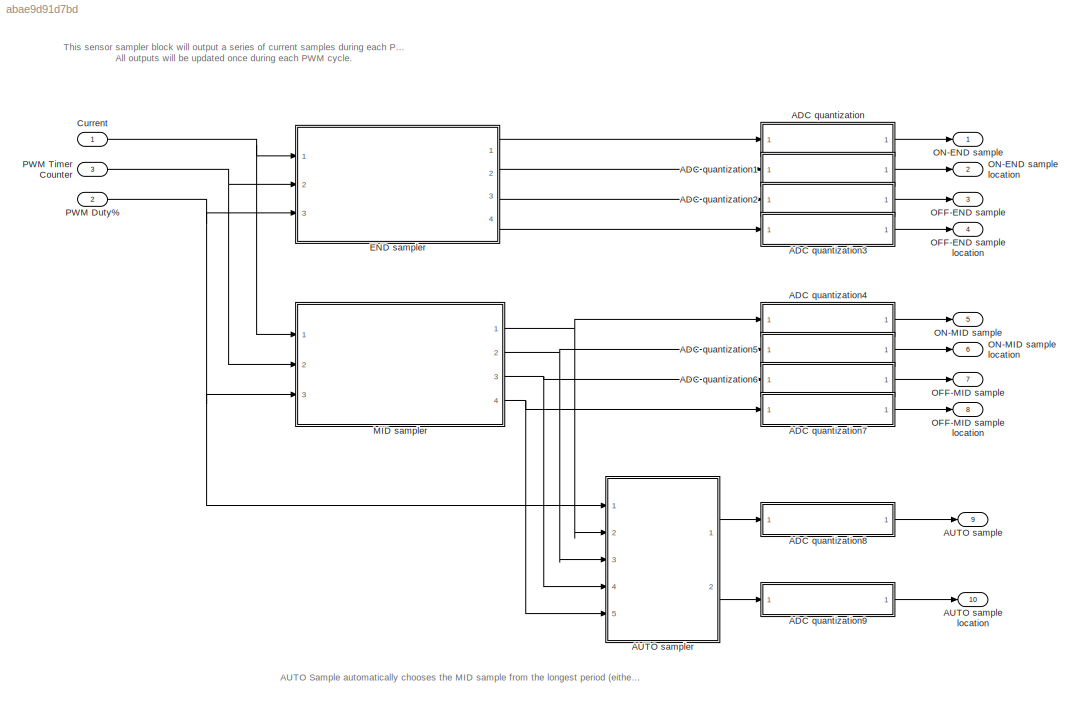
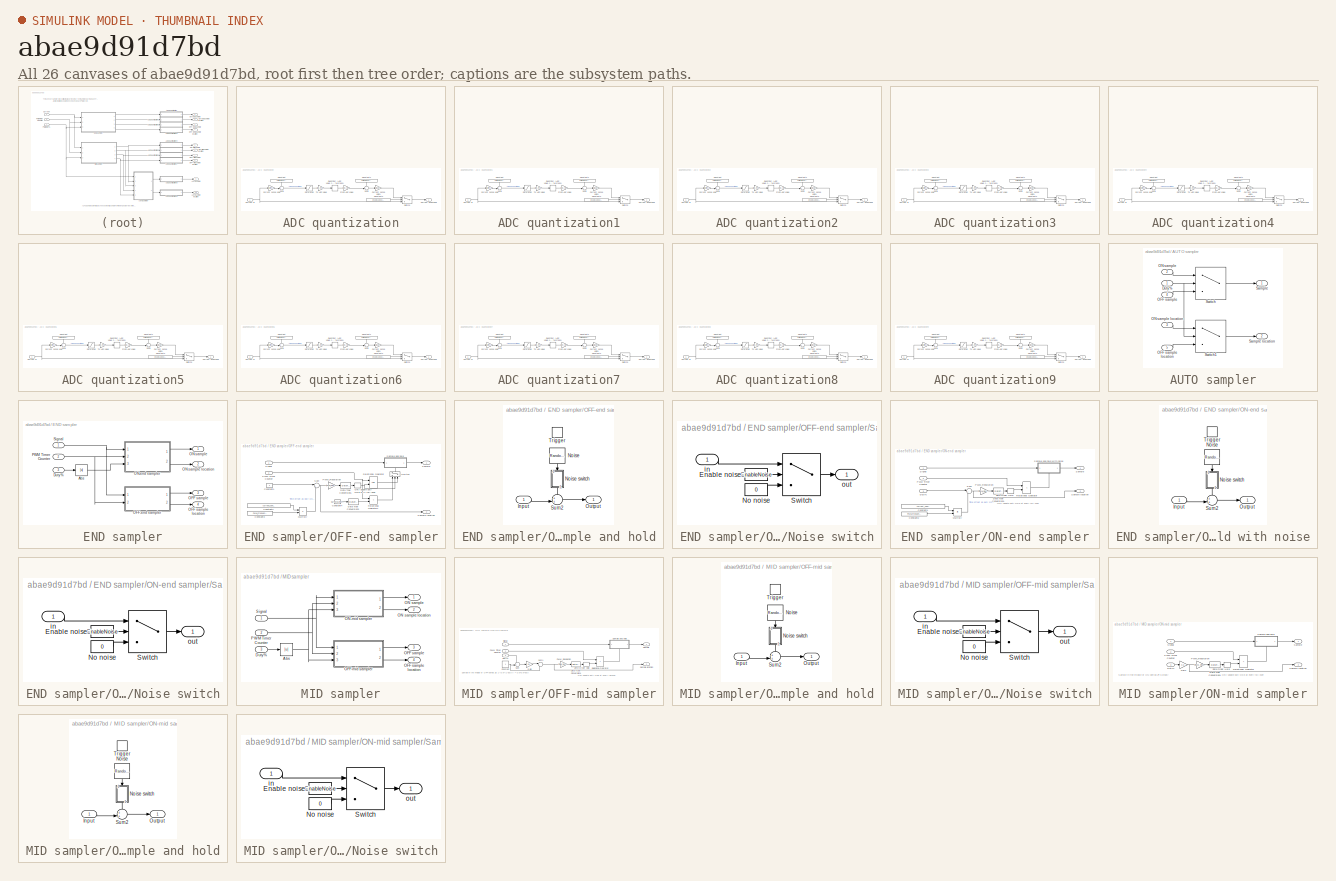
[diagram: thumbnail index - all 26 canvases of the model, root first then tree order]
MODEL slx_abae9d91d7bd
KIND model
CONFIG AbsTol = auto
CONFIG EnableMultiTasking = off
CONFIG FixedStep = auto
CONFIG InitFcn = Parameters_Model\nParameters_Simulation\nParameters_Estimators
CONFIG MaxStep = auto
CONFIG MinStep = auto
CONFIG PreLoadFcn = modelDir = fileparts(get_param(bdroot, 'FileName'));\naddpath(fullfile(modelDir,'Parameters'));\naddpath(fullfile(modelDir,'subsystems'));\n\nParameters_Model\nParameters_Simulation\nParameters_Estimators
CONFIG RelTol = 1e-3
CONFIG SampleTimeConstraint = Unconstrained
CONFIG Solver = VariableStepAuto
CONFIG SolverName = VariableStepAuto
CONFIG StartTime = 0.0
CONFIG StopTime = 10.0
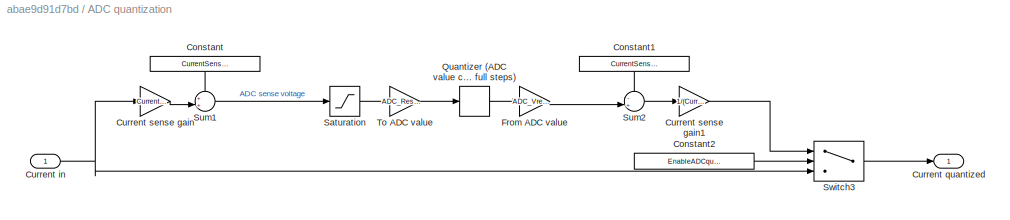
BLOCK [SubSystem] ADC quantization
  Ports = [1, 1]
  RequestExecContextInheritance = off
BLOCK [Constant] ADC quantization/Constant
  Value = CurrentSense_Voffset
BLOCK [Constant] ADC quantization/Constant1
  Value = CurrentSense_Voffset
BLOCK [Constant] ADC quantization/Constant2
  Value = EnableADCquantization
BLOCK [Inport] ADC quantization/Current in
  IconDisplay = Port number
BLOCK [Outport] ADC quantization/Current quantized
  IconDisplay = Port number
BLOCK [Gain] ADC quantization/Current sense gain
  Gain = CurrentSense_G*CurrentSense_Rsense
  OutDataTypeStr = Inherit: Inherit via internal rule
  ParamDataTypeStr = Inherit: Inherit via internal rule
  SaturateOnIntegerOverflow = off
BLOCK [Gain] ADC quantization/Current sense gain1
  Gain = 1/(CurrentSense_G*CurrentSense_Rsense)
  OutDataTypeStr = Inherit: Inherit via internal rule
  ParamDataTypeStr = Inherit: Inherit via internal rule
  SaturateOnIntegerOverflow = off
BLOCK [Gain] ADC quantization/From ADC value
  Gain = ADC_Vref/ADC_Resolution
  OutDataTypeStr = Inherit: Inherit via internal rule
  ParamDataTypeStr = Inherit: Inherit via internal rule
  SaturateOnIntegerOverflow = off
BLOCK [Quantizer] ADC quantization/Quantizer (ADC value can only be measured in full steps)
  QuantizationInterval = 1
BLOCK [Saturate] ADC quantization/Saturation
  InputPortMap = u0
  LowerLimit = 0
  Ports = [1, 1]
  UpperLimit = ADC_Vref
BLOCK [Sum] ADC quantization/Sum1
  IconShape = round
  InputSameDT = off
  Inputs = ++|
  OutDataTypeStr = Inherit: Inherit via internal rule
  Ports = [2, 1]
  SaturateOnIntegerOverflow = off
BLOCK [Sum] ADC quantization/Sum2
  IconShape = round
  InputSameDT = off
  Inputs = -+|
  OutDataTypeStr = Inherit: Inherit via internal rule
  Ports = [2, 1]
  SaturateOnIntegerOverflow = off
BLOCK [Switch] ADC quantization/Switch3
  Criteria = u2 ~= 0
  InputSameDT = off
  SaturateOnIntegerOverflow = off
BLOCK [Gain] ADC quantization/To ADC value
  Gain = ADC_Resolution/ADC_Vref
  OutDataTypeStr = Inherit: Inherit via internal rule
  ParamDataTypeStr = Inherit: Inherit via internal rule
  SaturateOnIntegerOverflow = off
BLOCK [SubSystem] ADC quantization1
  Ports = [1, 1]
  RequestExecContextInheritance = off
BLOCK [Constant] ADC quantization1/Constant
  Value = CurrentSense_Voffset
BLOCK [Constant] ADC quantization1/Constant1
  Value = CurrentSense_Voffset
BLOCK [Constant] ADC quantization1/Constant2
  Value = EnableADCquantization
BLOCK [Inport] ADC quantization1/Current in
  IconDisplay = Port number
BLOCK [Outport] ADC quantization1/Current quantized
  IconDisplay = Port number
BLOCK [Gain] ADC quantization1/Current sense gain
  Gain = CurrentSense_G*CurrentSense_Rsense
  OutDataTypeStr = Inherit: Inherit via internal rule
  ParamDataTypeStr = Inherit: Inherit via internal rule
  SaturateOnIntegerOverflow = off
BLOCK [Gain] ADC quantization1/Current sense gain1
  Gain = 1/(CurrentSense_G*CurrentSense_Rsense)
  OutDataTypeStr = Inherit: Inherit via internal rule
  ParamDataTypeStr = Inherit: Inherit via internal rule
  SaturateOnIntegerOverflow = off
BLOCK [Gain] ADC quantization1/From ADC value
  Gain = ADC_Vref/ADC_Resolution
  OutDataTypeStr = Inherit: Inherit via internal rule
  ParamDataTypeStr = Inherit: Inherit via internal rule
  SaturateOnIntegerOverflow = off
BLOCK [Quantizer] ADC quantization1/Quantizer (ADC value can only be measured in full steps)
  QuantizationInterval = 1
BLOCK [Saturate] ADC quantization1/Saturation
  InputPortMap = u0
  LowerLimit = 0
  Ports = [1, 1]
  UpperLimit = ADC_Vref
BLOCK [Sum] ADC quantization1/Sum1
  IconShape = round
  InputSameDT = off
  Inputs = ++|
  OutDataTypeStr = Inherit: Inherit via internal rule
  Ports = [2, 1]
  SaturateOnIntegerOverflow = off
BLOCK [Sum] ADC quantization1/Sum2
  IconShape = round
  InputSameDT = off
  Inputs = -+|
  OutDataTypeStr = Inherit: Inherit via internal rule
  Ports = [2, 1]
  SaturateOnIntegerOverflow = off
BLOCK [Switch] ADC quantization1/Switch3
  Criteria = u2 ~= 0
  InputSameDT = off
  SaturateOnIntegerOverflow = off
BLOCK [Gain] ADC quantization1/To ADC value
  Gain = ADC_Resolution/ADC_Vref
  OutDataTypeStr = Inherit: Inherit via internal rule
  ParamDataTypeStr = Inherit: Inherit via internal rule
  SaturateOnIntegerOverflow = off
BLOCK [SubSystem] ADC quantization2
  Ports = [1, 1]
  RequestExecContextInheritance = off
BLOCK [Constant] ADC quantization2/Constant
  Value = CurrentSense_Voffset
BLOCK [Constant] ADC quantization2/Constant1
  Value = CurrentSense_Voffset
BLOCK [Constant] ADC quantization2/Constant2
  Value = EnableADCquantization
BLOCK [Inport] ADC quantization2/Current in
  IconDisplay = Port number
BLOCK [Outport] ADC quantization2/Current quantized
  IconDisplay = Port number
BLOCK [Gain] ADC quantization2/Current sense gain
  Gain = CurrentSense_G*CurrentSense_Rsense
  OutDataTypeStr = Inherit: Inherit via internal rule
  ParamDataTypeStr = Inherit: Inherit via internal rule
  SaturateOnIntegerOverflow = off
BLOCK [Gain] ADC quantization2/Current sense gain1
  Gain = 1/(CurrentSense_G*CurrentSense_Rsense)
  OutDataTypeStr = Inherit: Inherit via internal rule
  ParamDataTypeStr = Inherit: Inherit via internal rule
  SaturateOnIntegerOverflow = off
BLOCK [Gain] ADC quantization2/From ADC value
  Gain = ADC_Vref/ADC_Resolution
  OutDataTypeStr = Inherit: Inherit via internal rule
  ParamDataTypeStr = Inherit: Inherit via internal rule
  SaturateOnIntegerOverflow = off
BLOCK [Quantizer] ADC quantization2/Quantizer (ADC value can only be measured in full steps)
  QuantizationInterval = 1
BLOCK [Saturate] ADC quantization2/Saturation
  InputPortMap = u0
  LowerLimit = 0
  Ports = [1, 1]
  UpperLimit = ADC_Vref
BLOCK [Sum] ADC quantization2/Sum1
  IconShape = round
  InputSameDT = off
  Inputs = ++|
  OutDataTypeStr = Inherit: Inherit via internal rule
  Ports = [2, 1]
  SaturateOnIntegerOverflow = off
BLOCK [Sum] ADC quantization2/Sum2
  IconShape = round
  InputSameDT = off
  Inputs = -+|
  OutDataTypeStr = Inherit: Inherit via internal rule
  Ports = [2, 1]
  SaturateOnIntegerOverflow = off
BLOCK [Switch] ADC quantization2/Switch3
  Criteria = u2 ~= 0
  InputSameDT = off
  SaturateOnIntegerOverflow = off
BLOCK [Gain] ADC quantization2/To ADC value
  Gain = ADC_Resolution/ADC_Vref
  OutDataTypeStr = Inherit: Inherit via internal rule
  ParamDataTypeStr = Inherit: Inherit via internal rule
  SaturateOnIntegerOverflow = off
BLOCK [SubSystem] ADC quantization3
  Ports = [1, 1]
  RequestExecContextInheritance = off
BLOCK [Constant] ADC quantization3/Constant
  Value = CurrentSense_Voffset
BLOCK [Constant] ADC quantization3/Constant1
  Value = CurrentSense_Voffset
BLOCK [Constant] ADC quantization3/Constant2
  Value = EnableADCquantization
BLOCK [Inport] ADC quantization3/Current in
  IconDisplay = Port number
BLOCK [Outport] ADC quantization3/Current quantized
  IconDisplay = Port number
BLOCK [Gain] ADC quantization3/Current sense gain
  Gain = CurrentSense_G*CurrentSense_Rsense
  OutDataTypeStr = Inherit: Inherit via internal rule
  ParamDataTypeStr = Inherit: Inherit via internal rule
  SaturateOnIntegerOverflow = off
BLOCK [Gain] ADC quantization3/Current sense gain1
  Gain = 1/(CurrentSense_G*CurrentSense_Rsense)
  OutDataTypeStr = Inherit: Inherit via internal rule
  ParamDataTypeStr = Inherit: Inherit via internal rule
  SaturateOnIntegerOverflow = off
BLOCK [Gain] ADC quantization3/From ADC value
  Gain = ADC_Vref/ADC_Resolution
  OutDataTypeStr = Inherit: Inherit via internal rule
  ParamDataTypeStr = Inherit: Inherit via internal rule
  SaturateOnIntegerOverflow = off
BLOCK [Quantizer] ADC quantization3/Quantizer (ADC value can only be measured in full steps)
  QuantizationInterval = 1
BLOCK [Saturate] ADC quantization3/Saturation
  InputPortMap = u0
  LowerLimit = 0
  Ports = [1, 1]
  UpperLimit = ADC_Vref
BLOCK [Sum] ADC quantization3/Sum1
  IconShape = round
  InputSameDT = off
  Inputs = ++|
  OutDataTypeStr = Inherit: Inherit via internal rule
  Ports = [2, 1]
  SaturateOnIntegerOverflow = off
BLOCK [Sum] ADC quantization3/Sum2
  IconShape = round
  InputSameDT = off
  Inputs = -+|
  OutDataTypeStr = Inherit: Inherit via internal rule
  Ports = [2, 1]
  SaturateOnIntegerOverflow = off
BLOCK [Switch] ADC quantization3/Switch3
  Criteria = u2 ~= 0
  InputSameDT = off
  SaturateOnIntegerOverflow = off
BLOCK [Gain] ADC quantization3/To ADC value
  Gain = ADC_Resolution/ADC_Vref
  OutDataTypeStr = Inherit: Inherit via internal rule
  ParamDataTypeStr = Inherit: Inherit via internal rule
  SaturateOnIntegerOverflow = off
BLOCK [SubSystem] ADC quantization4
  Ports = [1, 1]
  RequestExecContextInheritance = off
BLOCK [Constant] ADC quantization4/Constant
  Value = CurrentSense_Voffset
BLOCK [Constant] ADC quantization4/Constant1
  Value = CurrentSense_Voffset
BLOCK [Constant] ADC quantization4/Constant2
  Value = EnableADCquantization
BLOCK [Inport] ADC quantization4/Current in
  IconDisplay = Port number
BLOCK [Outport] ADC quantization4/Current quantized
  IconDisplay = Port number
BLOCK [Gain] ADC quantization4/Current sense gain
  Gain = CurrentSense_G*CurrentSense_Rsense
  OutDataTypeStr = Inherit: Inherit via internal rule
  ParamDataTypeStr = Inherit: Inherit via internal rule
  SaturateOnIntegerOverflow = off
BLOCK [Gain] ADC quantization4/Current sense gain1
  Gain = 1/(CurrentSense_G*CurrentSense_Rsense)
  OutDataTypeStr = Inherit: Inherit via internal rule
  ParamDataTypeStr = Inherit: Inherit via internal rule
  SaturateOnIntegerOverflow = off
BLOCK [Gain] ADC quantization4/From ADC value
  Gain = ADC_Vref/ADC_Resolution
  OutDataTypeStr = Inherit: Inherit via internal rule
  ParamDataTypeStr = Inherit: Inherit via internal rule
  SaturateOnIntegerOverflow = off
BLOCK [Quantizer] ADC quantization4/Quantizer (ADC value can only be measured in full steps)
  QuantizationInterval = 1
BLOCK [Saturate] ADC quantization4/Saturation
  InputPortMap = u0
  LowerLimit = 0
  Ports = [1, 1]
  UpperLimit = ADC_Vref
BLOCK [Sum] ADC quantization4/Sum1
  IconShape = round
  InputSameDT = off
  Inputs = ++|
  OutDataTypeStr = Inherit: Inherit via internal rule
  Ports = [2, 1]
  SaturateOnIntegerOverflow = off
BLOCK [Sum] ADC quantization4/Sum2
  IconShape = round
  InputSameDT = off
  Inputs = -+|
  OutDataTypeStr = Inherit: Inherit via internal rule
  Ports = [2, 1]
  SaturateOnIntegerOverflow = off
BLOCK [Switch] ADC quantization4/Switch3
  Criteria = u2 ~= 0
  InputSameDT = off
  SaturateOnIntegerOverflow = off
BLOCK [Gain] ADC quantization4/To ADC value
  Gain = ADC_Resolution/ADC_Vref
  OutDataTypeStr = Inherit: Inherit via internal rule
  ParamDataTypeStr = Inherit: Inherit via internal rule
  SaturateOnIntegerOverflow = off
BLOCK [SubSystem] ADC quantization5
  Ports = [1, 1]
  RequestExecContextInheritance = off
BLOCK [Constant] ADC quantization5/Constant
  Value = CurrentSense_Voffset
BLOCK [Constant] ADC quantization5/Constant1
  Value = CurrentSense_Voffset
BLOCK [Constant] ADC quantization5/Constant2
  Value = EnableADCquantization
BLOCK [Inport] ADC quantization5/Current in
  IconDisplay = Port number
BLOCK [Outport] ADC quantization5/Current quantized
  IconDisplay = Port number
BLOCK [Gain] ADC quantization5/Current sense gain
  Gain = CurrentSense_G*CurrentSense_Rsense
  OutDataTypeStr = Inherit: Inherit via internal rule
  ParamDataTypeStr = Inherit: Inherit via internal rule
  SaturateOnIntegerOverflow = off
BLOCK [Gain] ADC quantization5/Current sense gain1
  Gain = 1/(CurrentSense_G*CurrentSense_Rsense)
  OutDataTypeStr = Inherit: Inherit via internal rule
  ParamDataTypeStr = Inherit: Inherit via internal rule
  SaturateOnIntegerOverflow = off
BLOCK [Gain] ADC quantization5/From ADC value
  Gain = ADC_Vref/ADC_Resolution
  OutDataTypeStr = Inherit: Inherit via internal rule
  ParamDataTypeStr = Inherit: Inherit via internal rule
  SaturateOnIntegerOverflow = off
BLOCK [Quantizer] ADC quantization5/Quantizer (ADC value can only be measured in full steps)
  QuantizationInterval = 1
BLOCK [Saturate] ADC quantization5/Saturation
  InputPortMap = u0
  LowerLimit = 0
  Ports = [1, 1]
  UpperLimit = ADC_Vref
BLOCK [Sum] ADC quantization5/Sum1
  IconShape = round
  InputSameDT = off
  Inputs = ++|
  OutDataTypeStr = Inherit: Inherit via internal rule
  Ports = [2, 1]
  SaturateOnIntegerOverflow = off
BLOCK [Sum] ADC quantization5/Sum2
  IconShape = round
  InputSameDT = off
  Inputs = -+|
  OutDataTypeStr = Inherit: Inherit via internal rule
  Ports = [2, 1]
  SaturateOnIntegerOverflow = off
BLOCK [Switch] ADC quantization5/Switch3
  Criteria = u2 ~= 0
  InputSameDT = off
  SaturateOnIntegerOverflow = off
BLOCK [Gain] ADC quantization5/To ADC value
  Gain = ADC_Resolution/ADC_Vref
  OutDataTypeStr = Inherit: Inherit via internal rule
  ParamDataTypeStr = Inherit: Inherit via internal rule
  SaturateOnIntegerOverflow = off
BLOCK [SubSystem] ADC quantization6
  Ports = [1, 1]
  RequestExecContextInheritance = off
BLOCK [Constant] ADC quantization6/Constant
  Value = CurrentSense_Voffset
BLOCK [Constant] ADC quantization6/Constant1
  Value = CurrentSense_Voffset
BLOCK [Constant] ADC quantization6/Constant2
  Value = EnableADCquantization
BLOCK [Inport] ADC quantization6/Current in
  IconDisplay = Port number
BLOCK [Outport] ADC quantization6/Current quantized
  IconDisplay = Port number
BLOCK [Gain] ADC quantization6/Current sense gain
  Gain = CurrentSense_G*CurrentSense_Rsense
  OutDataTypeStr = Inherit: Inherit via internal rule
  ParamDataTypeStr = Inherit: Inherit via internal rule
  SaturateOnIntegerOverflow = off
BLOCK [Gain] ADC quantization6/Current sense gain1
  Gain = 1/(CurrentSense_G*CurrentSense_Rsense)
  OutDataTypeStr = Inherit: Inherit via internal rule
  ParamDataTypeStr = Inherit: Inherit via internal rule
  SaturateOnIntegerOverflow = off
BLOCK [Gain] ADC quantization6/From ADC value
  Gain = ADC_Vref/ADC_Resolution
  OutDataTypeStr = Inherit: Inherit via internal rule
  ParamDataTypeStr = Inherit: Inherit via internal rule
  SaturateOnIntegerOverflow = off
BLOCK [Quantizer] ADC quantization6/Quantizer (ADC value can only be measured in full steps)
  QuantizationInterval = 1
BLOCK [Saturate] ADC quantization6/Saturation
  InputPortMap = u0
  LowerLimit = 0
  Ports = [1, 1]
  UpperLimit = ADC_Vref
BLOCK [Sum] ADC quantization6/Sum1
  IconShape = round
  InputSameDT = off
  Inputs = ++|
  OutDataTypeStr = Inherit: Inherit via internal rule
  Ports = [2, 1]
  SaturateOnIntegerOverflow = off
BLOCK [Sum] ADC quantization6/Sum2
  IconShape = round
  InputSameDT = off
  Inputs = -+|
  OutDataTypeStr = Inherit: Inherit via internal rule
  Ports = [2, 1]
  SaturateOnIntegerOverflow = off
BLOCK [Switch] ADC quantization6/Switch3
  Criteria = u2 ~= 0
  InputSameDT = off
  SaturateOnIntegerOverflow = off
BLOCK [Gain] ADC quantization6/To ADC value
  Gain = ADC_Resolution/ADC_Vref
  OutDataTypeStr = Inherit: Inherit via internal rule
  ParamDataTypeStr = Inherit: Inherit via internal rule
  SaturateOnIntegerOverflow = off
BLOCK [SubSystem] ADC quantization7
  Ports = [1, 1]
  RequestExecContextInheritance = off
BLOCK [Constant] ADC quantization7/Constant
  Value = CurrentSense_Voffset
BLOCK [Constant] ADC quantization7/Constant1
  Value = CurrentSense_Voffset
BLOCK [Constant] ADC quantization7/Constant2
  Value = EnableADCquantization
BLOCK [Inport] ADC quantization7/Current in
  IconDisplay = Port number
BLOCK [Outport] ADC quantization7/Current quantized
  IconDisplay = Port number
BLOCK [Gain] ADC quantization7/Current sense gain
  Gain = CurrentSense_G*CurrentSense_Rsense
  OutDataTypeStr = Inherit: Inherit via internal rule
  ParamDataTypeStr = Inherit: Inherit via internal rule
  SaturateOnIntegerOverflow = off
BLOCK [Gain] ADC quantization7/Current sense gain1
  Gain = 1/(CurrentSense_G*CurrentSense_Rsense)
  OutDataTypeStr = Inherit: Inherit via internal rule
  ParamDataTypeStr = Inherit: Inherit via internal rule
  SaturateOnIntegerOverflow = off
BLOCK [Gain] ADC quantization7/From ADC value
  Gain = ADC_Vref/ADC_Resolution
  OutDataTypeStr = Inherit: Inherit via internal rule
  ParamDataTypeStr = Inherit: Inherit via internal rule
  SaturateOnIntegerOverflow = off
BLOCK [Quantizer] ADC quantization7/Quantizer (ADC value can only be measured in full steps)
  QuantizationInterval = 1
BLOCK [Saturate] ADC quantization7/Saturation
  InputPortMap = u0
  LowerLimit = 0
  Ports = [1, 1]
  UpperLimit = ADC_Vref
BLOCK [Sum] ADC quantization7/Sum1
  IconShape = round
  InputSameDT = off
  Inputs = ++|
  OutDataTypeStr = Inherit: Inherit via internal rule
  Ports = [2, 1]
  SaturateOnIntegerOverflow = off
BLOCK [Sum] ADC quantization7/Sum2
  IconShape = round
  InputSameDT = off
  Inputs = -+|
  OutDataTypeStr = Inherit: Inherit via internal rule
  Ports = [2, 1]
  SaturateOnIntegerOverflow = off
BLOCK [Switch] ADC quantization7/Switch3
  Criteria = u2 ~= 0
  InputSameDT = off
  SaturateOnIntegerOverflow = off
BLOCK [Gain] ADC quantization7/To ADC value
  Gain = ADC_Resolution/ADC_Vref
  OutDataTypeStr = Inherit: Inherit via internal rule
  ParamDataTypeStr = Inherit: Inherit via internal rule
  SaturateOnIntegerOverflow = off
BLOCK [SubSystem] ADC quantization8
  Ports = [1, 1]
  RequestExecContextInheritance = off
BLOCK [Constant] ADC quantization8/Constant
  Value = CurrentSense_Voffset
BLOCK [Constant] ADC quantization8/Constant1
  Value = CurrentSense_Voffset
BLOCK [Constant] ADC quantization8/Constant2
  Value = EnableADCquantization
BLOCK [Inport] ADC quantization8/Current in
  IconDisplay = Port number
BLOCK [Outport] ADC quantization8/Current quantized
  IconDisplay = Port number
BLOCK [Gain] ADC quantization8/Current sense gain
  Gain = CurrentSense_G*CurrentSense_Rsense
  OutDataTypeStr = Inherit: Inherit via internal rule
  ParamDataTypeStr = Inherit: Inherit via internal rule
  SaturateOnIntegerOverflow = off
BLOCK [Gain] ADC quantization8/Current sense gain1
  Gain = 1/(CurrentSense_G*CurrentSense_Rsense)
  OutDataTypeStr = Inherit: Inherit via internal rule
  ParamDataTypeStr = Inherit: Inherit via internal rule
  SaturateOnIntegerOverflow = off
BLOCK [Gain] ADC quantization8/From ADC value
  Gain = ADC_Vref/ADC_Resolution
  OutDataTypeStr = Inherit: Inherit via internal rule
  ParamDataTypeStr = Inherit: Inherit via internal rule
  SaturateOnIntegerOverflow = off
BLOCK [Quantizer] ADC quantization8/Quantizer (ADC value can only be measured in full steps)
  QuantizationInterval = 1
BLOCK [Saturate] ADC quantization8/Saturation
  InputPortMap = u0
  LowerLimit = 0
  Ports = [1, 1]
  UpperLimit = ADC_Vref
BLOCK [Sum] ADC quantization8/Sum1
  IconShape = round
  InputSameDT = off
  Inputs = ++|
  OutDataTypeStr = Inherit: Inherit via internal rule
  Ports = [2, 1]
  SaturateOnIntegerOverflow = off
BLOCK [Sum] ADC quantization8/Sum2
  IconShape = round
  InputSameDT = off
  Inputs = -+|
  OutDataTypeStr = Inherit: Inherit via internal rule
  Ports = [2, 1]
  SaturateOnIntegerOverflow = off
BLOCK [Switch] ADC quantization8/Switch3
  Criteria = u2 ~= 0
  InputSameDT = off
  SaturateOnIntegerOverflow = off
BLOCK [Gain] ADC quantization8/To ADC value
  Gain = ADC_Resolution/ADC_Vref
  OutDataTypeStr = Inherit: Inherit via internal rule
  ParamDataTypeStr = Inherit: Inherit via internal rule
  SaturateOnIntegerOverflow = off
BLOCK [SubSystem] ADC quantization9
  Ports = [1, 1]
  RequestExecContextInheritance = off
BLOCK [Constant] ADC quantization9/Constant
  Value = CurrentSense_Voffset
BLOCK [Constant] ADC quantization9/Constant1
  Value = CurrentSense_Voffset
BLOCK [Constant] ADC quantization9/Constant2
  Value = EnableADCquantization
BLOCK [Inport] ADC quantization9/Current in
  IconDisplay = Port number
BLOCK [Outport] ADC quantization9/Current quantized
  IconDisplay = Port number
BLOCK [Gain] ADC quantization9/Current sense gain
  Gain = CurrentSense_G*CurrentSense_Rsense
  OutDataTypeStr = Inherit: Inherit via internal rule
  ParamDataTypeStr = Inherit: Inherit via internal rule
  SaturateOnIntegerOverflow = off
BLOCK [Gain] ADC quantization9/Current sense gain1
  Gain = 1/(CurrentSense_G*CurrentSense_Rsense)
  OutDataTypeStr = Inherit: Inherit via internal rule
  ParamDataTypeStr = Inherit: Inherit via internal rule
  SaturateOnIntegerOverflow = off
BLOCK [Gain] ADC quantization9/From ADC value
  Gain = ADC_Vref/ADC_Resolution
  OutDataTypeStr = Inherit: Inherit via internal rule
  ParamDataTypeStr = Inherit: Inherit via internal rule
  SaturateOnIntegerOverflow = off
BLOCK [Quantizer] ADC quantization9/Quantizer (ADC value can only be measured in full steps)
  QuantizationInterval = 1
BLOCK [Saturate] ADC quantization9/Saturation
  InputPortMap = u0
  LowerLimit = 0
  Ports = [1, 1]
  UpperLimit = ADC_Vref
BLOCK [Sum] ADC quantization9/Sum1
  IconShape = round
  InputSameDT = off
  Inputs = ++|
  OutDataTypeStr = Inherit: Inherit via internal rule
  Ports = [2, 1]
  SaturateOnIntegerOverflow = off
BLOCK [Sum] ADC quantization9/Sum2
  IconShape = round
  InputSameDT = off
  Inputs = -+|
  OutDataTypeStr = Inherit: Inherit via internal rule
  Ports = [2, 1]
  SaturateOnIntegerOverflow = off
BLOCK [Switch] ADC quantization9/Switch3
  Criteria = u2 ~= 0
  InputSameDT = off
  SaturateOnIntegerOverflow = off
BLOCK [Gain] ADC quantization9/To ADC value
  Gain = ADC_Resolution/ADC_Vref
  OutDataTypeStr = Inherit: Inherit via internal rule
  ParamDataTypeStr = Inherit: Inherit via internal rule
  SaturateOnIntegerOverflow = off
BLOCK [Outport] AUTO sample
  IconDisplay = Port number
  Port = 9
BLOCK [Outport] AUTO sample location
  IconDisplay = Port number
  Port = 10
BLOCK [SubSystem] AUTO sampler
  Ports = [5, 2]
  RequestExecContextInheritance = off
BLOCK [Inport] AUTO sampler/Duty%
  IconDisplay = Port number
  OutDataTypeStr = double
BLOCK [Inport] AUTO sampler/OFF sample
  IconDisplay = Port number
  Port = 4
BLOCK [Inport] AUTO sampler/OFF sample location
  IconDisplay = Port number
  Port = 5
BLOCK [Inport] AUTO sampler/ON sample
  IconDisplay = Port number
  Port = 2
BLOCK [Inport] AUTO sampler/ON sample location
  IconDisplay = Port number
  Port = 3
BLOCK [Outport] AUTO sampler/Sample
  IconDisplay = Port number
BLOCK [Outport] AUTO sampler/Sample location
  IconDisplay = Port number
  Port = 2
BLOCK [Switch] AUTO sampler/Switch
  InputSameDT = off
  SaturateOnIntegerOverflow = off
  Threshold = 0.5
BLOCK [Switch] AUTO sampler/Switch1
  InputSameDT = off
  SaturateOnIntegerOverflow = off
  Threshold = 0.5
BLOCK [Inport] Current
  IconDisplay = Port number
BLOCK [SubSystem] END sampler
  Ports = [3, 4]
  RequestExecContextInheritance = off
BLOCK [Abs] END sampler/Abs
  SaturateOnIntegerOverflow = off
BLOCK [Inport] END sampler/Duty%
  IconDisplay = Port number
  OutDataTypeStr = double
  Port = 3
BLOCK [Outport] END sampler/OFF sample
  IconDisplay = Port number
  Port = 3
BLOCK [Outport] END sampler/OFF sample location
  IconDisplay = Port number
  Port = 4
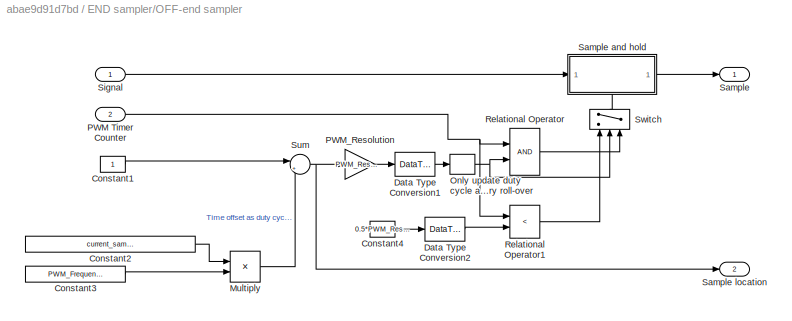
BLOCK [SubSystem] END sampler/OFF-end sampler
  Ports = [2, 2]
  RequestExecContextInheritance = off
BLOCK [Constant] END sampler/OFF-end sampler/Constant1
BLOCK [Constant] END sampler/OFF-end sampler/Constant2
  Value = current_sample_end_time_offset
BLOCK [Constant] END sampler/OFF-end sampler/Constant3
  Value = PWM_Frequency
BLOCK [Constant] END sampler/OFF-end sampler/Constant4
  Value = 0.5*PWM_Resolution
BLOCK [DataTypeConversion] END sampler/OFF-end sampler/Data Type Conversion1
  RndMeth = Round
  SaturateOnIntegerOverflow = off
BLOCK [DataTypeConversion] END sampler/OFF-end sampler/Data Type Conversion2
  RndMeth = Round
  SaturateOnIntegerOverflow = off
BLOCK [Product] END sampler/OFF-end sampler/Multiply
  InputSameDT = off
  OutDataTypeStr = Inherit: Inherit via internal rule
  Ports = [2, 1]
  RndMeth = Floor
  SaturateOnIntegerOverflow = off
BLOCK [ZeroOrderHold] END sampler/OFF-end sampler/Only update duty cycle at every roll-over
  SampleTime = 1/PWM_Frequency
BLOCK [Inport] END sampler/OFF-end sampler/PWM Timer Counter
  IconDisplay = Port number
  Port = 2
BLOCK [Gain] END sampler/OFF-end sampler/PWM_Resolution
  Gain = PWM_Resolution
  OutDataTypeStr = Inherit: Inherit via internal rule
  ParamDataTypeStr = Inherit: Inherit via internal rule
  SaturateOnIntegerOverflow = off
BLOCK [RelationalOperator] END sampler/OFF-end sampler/Relational Operator
  InputSameDT = off
  OutDataTypeStr = boolean
  Ports = [2, 1]
  RndMeth = Simplest
BLOCK [RelationalOperator] END sampler/OFF-end sampler/Relational Operator1
  InputSameDT = off
  Operator = <
  OutDataTypeStr = boolean
  Ports = [2, 1]
  RndMeth = Simplest
BLOCK [Outport] END sampler/OFF-end sampler/Sample
  IconDisplay = Port number
BLOCK [SubSystem] END sampler/OFF-end sampler/Sample and hold
  Ports = [1, 1, 0, 1]
  RequestExecContextInheritance = off
BLOCK [Inport] END sampler/OFF-end sampler/Sample and hold/Input
  IconDisplay = Port number
BLOCK [RandomNumber] END sampler/OFF-end sampler/Sample and hold/Noise
  Seed = 3
  Variance = sensor_sigma2_current_sense
BLOCK [SubSystem] END sampler/OFF-end sampler/Sample and hold/Noise switch
  Ports = [1, 1]
  RequestExecContextInheritance = off
BLOCK [Constant] END sampler/OFF-end sampler/Sample and hold/Noise switch/Enable noise
  Value = EnableNoise
BLOCK [Constant] END sampler/OFF-end sampler/Sample and hold/Noise switch/No noise
  Value = 0
BLOCK [Switch] END sampler/OFF-end sampler/Sample and hold/Noise switch/Switch
  Criteria = u2 > Threshold
  InputSameDT = off
  SaturateOnIntegerOverflow = off
BLOCK [Inport] END sampler/OFF-end sampler/Sample and hold/Noise switch/in
  IconDisplay = Port number
BLOCK [Outport] END sampler/OFF-end sampler/Sample and hold/Noise switch/out
  IconDisplay = Port number
BLOCK [Outport] END sampler/OFF-end sampler/Sample and hold/Output
  IconDisplay = Port number
BLOCK [Sum] END sampler/OFF-end sampler/Sample and hold/Sum2
  IconShape = round
  InputSameDT = off
  Inputs = ++|
  OutDataTypeStr = Inherit: Inherit via internal rule
  Ports = [2, 1]
  SaturateOnIntegerOverflow = off
BLOCK [TriggerPort] END sampler/OFF-end sampler/Sample and hold/Trigger
  PortDimensions = 1
  Ports = []
  StatesWhenEnabling = held
  VariantControl = Variant
BLOCK [Outport] END sampler/OFF-end sampler/Sample location
  IconDisplay = Port number
  Port = 2
BLOCK [Inport] END sampler/OFF-end sampler/Signal
  IconDisplay = Port number
BLOCK [Sum] END sampler/OFF-end sampler/Sum
  IconShape = round
  InputSameDT = off
  Inputs = |+-
  OutDataTypeStr = Inherit: Inherit via internal rule
  Ports = [2, 1]
  SaturateOnIntegerOverflow = off
BLOCK [Switch] END sampler/OFF-end sampler/Switch
  InputSameDT = off
  SaturateOnIntegerOverflow = off
  Threshold = PWM_Resolution
BLOCK [Outport] END sampler/ON sample
  IconDisplay = Port number
BLOCK [Outport] END sampler/ON sample location
  IconDisplay = Port number
  Port = 2
BLOCK [SubSystem] END sampler/ON-end sampler
  Ports = [3, 2]
  RequestExecContextInheritance = off
BLOCK [Constant] END sampler/ON-end sampler/Constant1
  Value = current_sample_end_time_offset
BLOCK [Constant] END sampler/ON-end sampler/Constant2
  Value = PWM_Frequency
BLOCK [DataTypeConversion] END sampler/ON-end sampler/Data Type Conversion1
  RndMeth = Round
  SaturateOnIntegerOverflow = off
BLOCK [Inport] END sampler/ON-end sampler/Duty%
  IconDisplay = Port number
  OutDataTypeStr = double
  Port = 3
BLOCK [Product] END sampler/ON-end sampler/Multiply
  InputSameDT = off
  OutDataTypeStr = Inherit: Inherit via internal rule
  Ports = [2, 1]
  RndMeth = Floor
  SaturateOnIntegerOverflow = off
BLOCK [Inport] END sampler/ON-end sampler/PWM Timer Counter
  IconDisplay = Port number
  Port = 2
BLOCK [Gain] END sampler/ON-end sampler/PWM_Resolution
  Gain = PWM_Resolution
  OutDataTypeStr = Inherit: Inherit via internal rule
  ParamDataTypeStr = Inherit: Inherit via internal rule
  SaturateOnIntegerOverflow = off
BLOCK [RelationalOperator] END sampler/ON-end sampler/Relational Operator
  InputSameDT = off
  Operator = <
  OutDataTypeStr = boolean
  Ports = [2, 1]
  RndMeth = Simplest
BLOCK [Outport] END sampler/ON-end sampler/Sample
  IconDisplay = Port number
BLOCK [SubSystem] END sampler/ON-end sampler/Sample and hold with noise
  Ports = [1, 1, 0, 1]
  RequestExecContextInheritance = off
BLOCK [Inport] END sampler/ON-end sampler/Sample and hold with noise/Input
  IconDisplay = Port number
BLOCK [RandomNumber] END sampler/ON-end sampler/Sample and hold with noise/Noise
  Seed = 2
  Variance = sensor_sigma2_current_sense
BLOCK [SubSystem] END sampler/ON-end sampler/Sample and hold with noise/Noise switch
  Ports = [1, 1]
  RequestExecContextInheritance = off
BLOCK [Constant] END sampler/ON-end sampler/Sample and hold with noise/Noise switch/Enable noise
  Value = EnableNoise
BLOCK [Constant] END sampler/ON-end sampler/Sample and hold with noise/Noise switch/No noise
  Value = 0
BLOCK [Switch] END sampler/ON-end sampler/Sample and hold with noise/Noise switch/Switch
  Criteria = u2 > Threshold
  InputSameDT = off
  SaturateOnIntegerOverflow = off
BLOCK [Inport] END sampler/ON-end sampler/Sample and hold with noise/Noise switch/in
  IconDisplay = Port number
BLOCK [Outport] END sampler/ON-end sampler/Sample and hold with noise/Noise switch/out
  IconDisplay = Port number
BLOCK [Outport] END sampler/ON-end sampler/Sample and hold with noise/Output
  IconDisplay = Port number
BLOCK [Sum] END sampler/ON-end sampler/Sample and hold with noise/Sum2
  IconShape = round
  InputSameDT = off
  Inputs = ++|
  OutDataTypeStr = Inherit: Inherit via internal rule
  Ports = [2, 1]
  SaturateOnIntegerOverflow = off
BLOCK [TriggerPort] END sampler/ON-end sampler/Sample and hold with noise/Trigger
  PortDimensions = 1
  Ports = []
  StatesWhenEnabling = held
  TriggerType = falling
  VariantControl = Variant
BLOCK [Outport] END sampler/ON-end sampler/Sample location
  IconDisplay = Port number
  Port = 2
BLOCK [Inport] END sampler/ON-end sampler/Signal
  IconDisplay = Port number
BLOCK [Sum] END sampler/ON-end sampler/Sum
  IconShape = round
  InputSameDT = off
  Inputs = |+-
  OutDataTypeStr = Inherit: Inherit via internal rule
  Ports = [2, 1]
  SaturateOnIntegerOverflow = off
BLOCK [ZeroOrderHold] END sampler/ON-end sampler/Zero-Order Hold
  SampleTime = 1/PWM_Frequency
BLOCK [Inport] END sampler/PWM Timer Counter
  IconDisplay = Port number
  Port = 2
BLOCK [Inport] END sampler/Signal
  IconDisplay = Port number
BLOCK [SubSystem] MID sampler
  Ports = [3, 4]
  RequestExecContextInheritance = off
BLOCK [Abs] MID sampler/Abs
  SaturateOnIntegerOverflow = off
BLOCK [Inport] MID sampler/Duty%
  IconDisplay = Port number
  OutDataTypeStr = double
  Port = 3
BLOCK [Outport] MID sampler/OFF sample
  IconDisplay = Port number
  Port = 3
BLOCK [Outport] MID sampler/OFF sample location
  IconDisplay = Port number
  Port = 4
BLOCK [SubSystem] MID sampler/OFF-mid sampler
  Ports = [3, 2]
  RequestExecContextInheritance = off
BLOCK [Constant] MID sampler/OFF-mid sampler/Constant
BLOCK [DataTypeConversion] MID sampler/OFF-mid sampler/Data Type Conversion1
  RndMeth = Round
  SaturateOnIntegerOverflow = off
BLOCK [Inport] MID sampler/OFF-mid sampler/Duty%
  IconDisplay = Port number
  OutDataTypeStr = double
  Port = 3
BLOCK [Gain] MID sampler/OFF-mid sampler/Gain
  Gain = 0.5
  OutDataTypeStr = Inherit: Inherit via internal rule
  ParamDataTypeStr = Inherit: Inherit via internal rule
  SaturateOnIntegerOverflow = off
BLOCK [Inport] MID sampler/OFF-mid sampler/PWM Timer Counter
  IconDisplay = Port number
  Port = 2
BLOCK [Gain] MID sampler/OFF-mid sampler/PWM_Resolution
  Gain = PWM_Resolution
  OutDataTypeStr = Inherit: Inherit via internal rule
  ParamDataTypeStr = Inherit: Inherit via internal rule
  SaturateOnIntegerOverflow = off
BLOCK [RelationalOperator] MID sampler/OFF-mid sampler/Relational Operator
  InputSameDT = off
  Operator = <
  OutDataTypeStr = boolean
  Ports = [2, 1]
  RndMeth = Simplest
BLOCK [Outport] MID sampler/OFF-mid sampler/Sample
  IconDisplay = Port number
BLOCK [SubSystem] MID sampler/OFF-mid sampler/Sample and hold
  Ports = [1, 1, 0, 1]
  RequestExecContextInheritance = off
BLOCK [Inport] MID sampler/OFF-mid sampler/Sample and hold/Input
  IconDisplay = Port number
BLOCK [RandomNumber] MID sampler/OFF-mid sampler/Sample and hold/Noise
  Seed = 5
  Variance = sensor_sigma2_current_sense
BLOCK [SubSystem] MID sampler/OFF-mid sampler/Sample and hold/Noise switch
  Ports = [1, 1]
  RequestExecContextInheritance = off
BLOCK [Constant] MID sampler/OFF-mid sampler/Sample and hold/Noise switch/Enable noise
  Value = EnableNoise
BLOCK [Constant] MID sampler/OFF-mid sampler/Sample and hold/Noise switch/No noise
  Value = 0
BLOCK [Switch] MID sampler/OFF-mid sampler/Sample and hold/Noise switch/Switch
  Criteria = u2 > Threshold
  InputSameDT = off
  SaturateOnIntegerOverflow = off
BLOCK [Inport] MID sampler/OFF-mid sampler/Sample and hold/Noise switch/in
  IconDisplay = Port number
BLOCK [Outport] MID sampler/OFF-mid sampler/Sample and hold/Noise switch/out
  IconDisplay = Port number
BLOCK [Outport] MID sampler/OFF-mid sampler/Sample and hold/Output
  IconDisplay = Port number
BLOCK [Sum] MID sampler/OFF-mid sampler/Sample and hold/Sum2
  IconShape = round
  InputSameDT = off
  Inputs = ++|
  OutDataTypeStr = Inherit: Inherit via internal rule
  Ports = [2, 1]
  SaturateOnIntegerOverflow = off
BLOCK [TriggerPort] MID sampler/OFF-mid sampler/Sample and hold/Trigger
  PortDimensions = 1
  Ports = []
  StatesWhenEnabling = held
  TriggerType = falling
  VariantControl = Variant
BLOCK [Outport] MID sampler/OFF-mid sampler/Sample location
  IconDisplay = Port number
  Port = 2
BLOCK [Inport] MID sampler/OFF-mid sampler/Signal
  IconDisplay = Port number
BLOCK [Sum] MID sampler/OFF-mid sampler/Sum
  IconShape = round
  InputSameDT = off
  Inputs = -+|
  OutDataTypeStr = Inherit: Inherit via internal rule
  Ports = [2, 1]
  SaturateOnIntegerOverflow = off
BLOCK [Sum] MID sampler/OFF-mid sampler/Sum1
  IconShape = round
  InputSameDT = off
  Inputs = |-+
  OutDataTypeStr = Inherit: Inherit via internal rule
  Ports = [2, 1]
  SaturateOnIntegerOverflow = off
BLOCK [ZeroOrderHold] MID sampler/OFF-mid sampler/Zero-Order Hold
  SampleTime = 1/PWM_Frequency
BLOCK [Outport] MID sampler/ON sample
  IconDisplay = Port number
BLOCK [Outport] MID sampler/ON sample location
  IconDisplay = Port number
  Port = 2
BLOCK [SubSystem] MID sampler/ON-mid sampler
  Ports = [3, 2]
  RequestExecContextInheritance = off
BLOCK [DataTypeConversion] MID sampler/ON-mid sampler/Data Type Conversion1
  RndMeth = Round
  SaturateOnIntegerOverflow = off
BLOCK [Inport] MID sampler/ON-mid sampler/Duty%
  IconDisplay = Port number
  OutDataTypeStr = double
  Port = 3
BLOCK [Gain] MID sampler/ON-mid sampler/Gain
  Gain = 0.5
  OutDataTypeStr = Inherit: Inherit via internal rule
  ParamDataTypeStr = Inherit: Inherit via internal rule
  SaturateOnIntegerOverflow = off
BLOCK [Inport] MID sampler/ON-mid sampler/PWM Timer Counter
  IconDisplay = Port number
  Port = 2
BLOCK [Gain] MID sampler/ON-mid sampler/PWM_Resolution
  Gain = PWM_Resolution
  OutDataTypeStr = Inherit: Inherit via internal rule
  ParamDataTypeStr = Inherit: Inherit via internal rule
  SaturateOnIntegerOverflow = off
BLOCK [RelationalOperator] MID sampler/ON-mid sampler/Relational Operator
  InputSameDT = off
  Operator = <
  OutDataTypeStr = boolean
  Ports = [2, 1]
  RndMeth = Simplest
BLOCK [Outport] MID sampler/ON-mid sampler/Sample
  IconDisplay = Port number
BLOCK [SubSystem] MID sampler/ON-mid sampler/Sample and hold
  Ports = [1, 1, 0, 1]
  RequestExecContextInheritance = off
BLOCK [Inport] MID sampler/ON-mid sampler/Sample and hold/Input
  IconDisplay = Port number
BLOCK [RandomNumber] MID sampler/ON-mid sampler/Sample and hold/Noise
  Seed = 4
  Variance = sensor_sigma2_current_sense
BLOCK [SubSystem] MID sampler/ON-mid sampler/Sample and hold/Noise switch
  Ports = [1, 1]
  RequestExecContextInheritance = off
BLOCK [Constant] MID sampler/ON-mid sampler/Sample and hold/Noise switch/Enable noise
  Value = EnableNoise
BLOCK [Constant] MID sampler/ON-mid sampler/Sample and hold/Noise switch/No noise
  Value = 0
BLOCK [Switch] MID sampler/ON-mid sampler/Sample and hold/Noise switch/Switch
  Criteria = u2 > Threshold
  InputSameDT = off
  SaturateOnIntegerOverflow = off
BLOCK [Inport] MID sampler/ON-mid sampler/Sample and hold/Noise switch/in
  IconDisplay = Port number
BLOCK [Outport] MID sampler/ON-mid sampler/Sample and hold/Noise switch/out
  IconDisplay = Port number
BLOCK [Outport] MID sampler/ON-mid sampler/Sample and hold/Output
  IconDisplay = Port number
BLOCK [Sum] MID sampler/ON-mid sampler/Sample and hold/Sum2
  IconShape = round
  InputSameDT = off
  Inputs = ++|
  OutDataTypeStr = Inherit: Inherit via internal rule
  Ports = [2, 1]
  SaturateOnIntegerOverflow = off
BLOCK [TriggerPort] MID sampler/ON-mid sampler/Sample and hold/Trigger
  PortDimensions = 1
  Ports = []
  StatesWhenEnabling = held
  TriggerType = falling
  VariantControl = Variant
BLOCK [Outport] MID sampler/ON-mid sampler/Sample location
  IconDisplay = Port number
  Port = 2
BLOCK [Inport] MID sampler/ON-mid sampler/Signal
  IconDisplay = Port number
BLOCK [ZeroOrderHold] MID sampler/ON-mid sampler/Zero-Order Hold
  SampleTime = 1/PWM_Frequency
BLOCK [Inport] MID sampler/PWM Timer Counter
  IconDisplay = Port number
  Port = 2
BLOCK [Inport] MID sampler/Signal
  IconDisplay = Port number
BLOCK [Outport] OFF-END sample
  IconDisplay = Port number
  Port = 3
BLOCK [Outport] OFF-END sample location
  IconDisplay = Port number
  Port = 4
BLOCK [Outport] OFF-MID sample
  IconDisplay = Port number
  Port = 7
BLOCK [Outport] OFF-MID sample location
  IconDisplay = Port number
  Port = 8
BLOCK [Outport] ON-END sample
  IconDisplay = Port number
BLOCK [Outport] ON-END sample location
  IconDisplay = Port number
  Port = 2
BLOCK [Outport] ON-MID sample
  IconDisplay = Port number
  Port = 5
BLOCK [Outport] ON-MID sample location
  IconDisplay = Port number
  Port = 6
BLOCK [Inport] PWM Duty%
  IconDisplay = Port number
  OutDataTypeStr = double
  Port = 2
BLOCK [Inport] PWM Timer Counter
  IconDisplay = Port number
  OutDataTypeStr = uint32
  Port = 3
  SampleTime = 1/(PWM_Resolution*PWM_Frequency)
ANNOTATION (root): This sensor sampler block will output a series of current samples during each PWM cycle. All outputs will be updated once during each PWM cycle.
ANNOTATION (root): AUTO Sample automatically chooses the MID sample from the longest period (either ON or OFF)
ANNOTATION END sampler/ON-end sampler: Only update duty cycle at every roll-over
ANNOTATION MID sampler/OFF-mid sampler: Only update duty cycle at every roll-over
ANNOTATION MID sampler/OFF-mid sampler: Sample in the middle of OFF-period @ 1-(0.5*(1-duty)) = 0.5+0.5*duty
ANNOTATION MID sampler/ON-mid sampler: Only update duty cycle at every roll-over
ANNOTATION MID sampler/ON-mid sampler: Sample in the middle of ON-period @ 0.5*duty
LINE ADC quantization/Constant1:1 -> ADC quantization/Sum2:1
LINE ADC quantization/Constant2:1 -> ADC quantization/Switch3:2
LINE ADC quantization/Constant:1 -> ADC quantization/Sum1:1
NET ADC quantization/Current in:1 -> ADC quantization/Current sense gain:1, ADC quantization/Switch3:3
LINE ADC quantization/Current sense gain1:1 -> ADC quantization/Switch3:1
LINE ADC quantization/Current sense gain:1 -> ADC quantization/Sum1:2
LINE ADC quantization/From ADC value:1 -> ADC quantization/Sum2:2
LINE ADC quantization/Quantizer (ADC value can only be measured in full steps):1 -> ADC quantization/From ADC value:1
LINE ADC quantization/Saturation:1 -> ADC quantization/To ADC value:1
LINE ADC quantization/Sum1:1 -> ADC quantization/Saturation:1
LINE ADC quantization/Sum2:1 -> ADC quantization/Current sense gain1:1
LINE ADC quantization/Switch3:1 -> ADC quantization/Current quantized:1
LINE ADC quantization/To ADC value:1 -> ADC quantization/Quantizer (ADC value can only be measured in full steps):1
LINE ADC quantization1/Constant1:1 -> ADC quantization1/Sum2:1
LINE ADC quantization1/Constant2:1 -> ADC quantization1/Switch3:2
LINE ADC quantization1/Constant:1 -> ADC quantization1/Sum1:1
NET ADC quantization1/Current in:1 -> ADC quantization1/Current sense gain:1, ADC quantization1/Switch3:3
LINE ADC quantization1/Current sense gain1:1 -> ADC quantization1/Switch3:1
LINE ADC quantization1/Current sense gain:1 -> ADC quantization1/Sum1:2
LINE ADC quantization1/From ADC value:1 -> ADC quantization1/Sum2:2
LINE ADC quantization1/Quantizer (ADC value can only be measured in full steps):1 -> ADC quantization1/From ADC value:1
LINE ADC quantization1/Saturation:1 -> ADC quantization1/To ADC value:1
LINE ADC quantization1/Sum1:1 -> ADC quantization1/Saturation:1
LINE ADC quantization1/Sum2:1 -> ADC quantization1/Current sense gain1:1
LINE ADC quantization1/Switch3:1 -> ADC quantization1/Current quantized:1
LINE ADC quantization1/To ADC value:1 -> ADC quantization1/Quantizer (ADC value can only be measured in full steps):1
LINE ADC quantization1:1 -> ON-END sample location:1
LINE ADC quantization2/Constant1:1 -> ADC quantization2/Sum2:1
LINE ADC quantization2/Constant2:1 -> ADC quantization2/Switch3:2
LINE ADC quantization2/Constant:1 -> ADC quantization2/Sum1:1
NET ADC quantization2/Current in:1 -> ADC quantization2/Current sense gain:1, ADC quantization2/Switch3:3
LINE ADC quantization2/Current sense gain1:1 -> ADC quantization2/Switch3:1
LINE ADC quantization2/Current sense gain:1 -> ADC quantization2/Sum1:2
LINE ADC quantization2/From ADC value:1 -> ADC quantization2/Sum2:2
LINE ADC quantization2/Quantizer (ADC value can only be measured in full steps):1 -> ADC quantization2/From ADC value:1
LINE ADC quantization2/Saturation:1 -> ADC quantization2/To ADC value:1
LINE ADC quantization2/Sum1:1 -> ADC quantization2/Saturation:1
LINE ADC quantization2/Sum2:1 -> ADC quantization2/Current sense gain1:1
LINE ADC quantization2/Switch3:1 -> ADC quantization2/Current quantized:1
LINE ADC quantization2/To ADC value:1 -> ADC quantization2/Quantizer (ADC value can only be measured in full steps):1
LINE ADC quantization2:1 -> OFF-END sample:1
LINE ADC quantization3/Constant1:1 -> ADC quantization3/Sum2:1
LINE ADC quantization3/Constant2:1 -> ADC quantization3/Switch3:2
LINE ADC quantization3/Constant:1 -> ADC quantization3/Sum1:1
NET ADC quantization3/Current in:1 -> ADC quantization3/Current sense gain:1, ADC quantization3/Switch3:3
LINE ADC quantization3/Current sense gain1:1 -> ADC quantization3/Switch3:1
LINE ADC quantization3/Current sense gain:1 -> ADC quantization3/Sum1:2
LINE ADC quantization3/From ADC value:1 -> ADC quantization3/Sum2:2
LINE ADC quantization3/Quantizer (ADC value can only be measured in full steps):1 -> ADC quantization3/From ADC value:1
LINE ADC quantization3/Saturation:1 -> ADC quantization3/To ADC value:1
LINE ADC quantization3/Sum1:1 -> ADC quantization3/Saturation:1
LINE ADC quantization3/Sum2:1 -> ADC quantization3/Current sense gain1:1
LINE ADC quantization3/Switch3:1 -> ADC quantization3/Current quantized:1
LINE ADC quantization3/To ADC value:1 -> ADC quantization3/Quantizer (ADC value can only be measured in full steps):1
LINE ADC quantization3:1 -> OFF-END sample location:1
LINE ADC quantization4/Constant1:1 -> ADC quantization4/Sum2:1
LINE ADC quantization4/Constant2:1 -> ADC quantization4/Switch3:2
LINE ADC quantization4/Constant:1 -> ADC quantization4/Sum1:1
NET ADC quantization4/Current in:1 -> ADC quantization4/Current sense gain:1, ADC quantization4/Switch3:3
LINE ADC quantization4/Current sense gain1:1 -> ADC quantization4/Switch3:1
LINE ADC quantization4/Current sense gain:1 -> ADC quantization4/Sum1:2
LINE ADC quantization4/From ADC value:1 -> ADC quantization4/Sum2:2
LINE ADC quantization4/Quantizer (ADC value can only be measured in full steps):1 -> ADC quantization4/From ADC value:1
LINE ADC quantization4/Saturation:1 -> ADC quantization4/To ADC value:1
LINE ADC quantization4/Sum1:1 -> ADC quantization4/Saturation:1
LINE ADC quantization4/Sum2:1 -> ADC quantization4/Current sense gain1:1
LINE ADC quantization4/Switch3:1 -> ADC quantization4/Current quantized:1
LINE ADC quantization4/To ADC value:1 -> ADC quantization4/Quantizer (ADC value can only be measured in full steps):1
LINE ADC quantization4:1 -> ON-MID sample:1
LINE ADC quantization5/Constant1:1 -> ADC quantization5/Sum2:1
LINE ADC quantization5/Constant2:1 -> ADC quantization5/Switch3:2
LINE ADC quantization5/Constant:1 -> ADC quantization5/Sum1:1
NET ADC quantization5/Current in:1 -> ADC quantization5/Current sense gain:1, ADC quantization5/Switch3:3
LINE ADC quantization5/Current sense gain1:1 -> ADC quantization5/Switch3:1
LINE ADC quantization5/Current sense gain:1 -> ADC quantization5/Sum1:2
LINE ADC quantization5/From ADC value:1 -> ADC quantization5/Sum2:2
LINE ADC quantization5/Quantizer (ADC value can only be measured in full steps):1 -> ADC quantization5/From ADC value:1
LINE ADC quantization5/Saturation:1 -> ADC quantization5/To ADC value:1
LINE ADC quantization5/Sum1:1 -> ADC quantization5/Saturation:1
LINE ADC quantization5/Sum2:1 -> ADC quantization5/Current sense gain1:1
LINE ADC quantization5/Switch3:1 -> ADC quantization5/Current quantized:1
LINE ADC quantization5/To ADC value:1 -> ADC quantization5/Quantizer (ADC value can only be measured in full steps):1
LINE ADC quantization5:1 -> ON-MID sample location:1
LINE ADC quantization6/Constant1:1 -> ADC quantization6/Sum2:1
LINE ADC quantization6/Constant2:1 -> ADC quantization6/Switch3:2
LINE ADC quantization6/Constant:1 -> ADC quantization6/Sum1:1
NET ADC quantization6/Current in:1 -> ADC quantization6/Current sense gain:1, ADC quantization6/Switch3:3
LINE ADC quantization6/Current sense gain1:1 -> ADC quantization6/Switch3:1
LINE ADC quantization6/Current sense gain:1 -> ADC quantization6/Sum1:2
LINE ADC quantization6/From ADC value:1 -> ADC quantization6/Sum2:2
LINE ADC quantization6/Quantizer (ADC value can only be measured in full steps):1 -> ADC quantization6/From ADC value:1
LINE ADC quantization6/Saturation:1 -> ADC quantization6/To ADC value:1
LINE ADC quantization6/Sum1:1 -> ADC quantization6/Saturation:1
LINE ADC quantization6/Sum2:1 -> ADC quantization6/Current sense gain1:1
LINE ADC quantization6/Switch3:1 -> ADC quantization6/Current quantized:1
LINE ADC quantization6/To ADC value:1 -> ADC quantization6/Quantizer (ADC value can only be measured in full steps):1
LINE ADC quantization6:1 -> OFF-MID sample:1
LINE ADC quantization7/Constant1:1 -> ADC quantization7/Sum2:1
LINE ADC quantization7/Constant2:1 -> ADC quantization7/Switch3:2
LINE ADC quantization7/Constant:1 -> ADC quantization7/Sum1:1
NET ADC quantization7/Current in:1 -> ADC quantization7/Current sense gain:1, ADC quantization7/Switch3:3
LINE ADC quantization7/Current sense gain1:1 -> ADC quantization7/Switch3:1
LINE ADC quantization7/Current sense gain:1 -> ADC quantization7/Sum1:2
LINE ADC quantization7/From ADC value:1 -> ADC quantization7/Sum2:2
LINE ADC quantization7/Quantizer (ADC value can only be measured in full steps):1 -> ADC quantization7/From ADC value:1
LINE ADC quantization7/Saturation:1 -> ADC quantization7/To ADC value:1
LINE ADC quantization7/Sum1:1 -> ADC quantization7/Saturation:1
LINE ADC quantization7/Sum2:1 -> ADC quantization7/Current sense gain1:1
LINE ADC quantization7/Switch3:1 -> ADC quantization7/Current quantized:1
LINE ADC quantization7/To ADC value:1 -> ADC quantization7/Quantizer (ADC value can only be measured in full steps):1
LINE ADC quantization7:1 -> OFF-MID sample location:1
LINE ADC quantization8/Constant1:1 -> ADC quantization8/Sum2:1
LINE ADC quantization8/Constant2:1 -> ADC quantization8/Switch3:2
LINE ADC quantization8/Constant:1 -> ADC quantization8/Sum1:1
NET ADC quantization8/Current in:1 -> ADC quantization8/Current sense gain:1, ADC quantization8/Switch3:3
LINE ADC quantization8/Current sense gain1:1 -> ADC quantization8/Switch3:1
LINE ADC quantization8/Current sense gain:1 -> ADC quantization8/Sum1:2
LINE ADC quantization8/From ADC value:1 -> ADC quantization8/Sum2:2
LINE ADC quantization8/Quantizer (ADC value can only be measured in full steps):1 -> ADC quantization8/From ADC value:1
LINE ADC quantization8/Saturation:1 -> ADC quantization8/To ADC value:1
LINE ADC quantization8/Sum1:1 -> ADC quantization8/Saturation:1
LINE ADC quantization8/Sum2:1 -> ADC quantization8/Current sense gain1:1
LINE ADC quantization8/Switch3:1 -> ADC quantization8/Current quantized:1
LINE ADC quantization8/To ADC value:1 -> ADC quantization8/Quantizer (ADC value can only be measured in full steps):1
LINE ADC quantization8:1 -> AUTO sample:1
LINE ADC quantization9/Constant1:1 -> ADC quantization9/Sum2:1
LINE ADC quantization9/Constant2:1 -> ADC quantization9/Switch3:2
LINE ADC quantization9/Constant:1 -> ADC quantization9/Sum1:1
NET ADC quantization9/Current in:1 -> ADC quantization9/Current sense gain:1, ADC quantization9/Switch3:3
LINE ADC quantization9/Current sense gain1:1 -> ADC quantization9/Switch3:1
LINE ADC quantization9/Current sense gain:1 -> ADC quantization9/Sum1:2
LINE ADC quantization9/From ADC value:1 -> ADC quantization9/Sum2:2
LINE ADC quantization9/Quantizer (ADC value can only be measured in full steps):1 -> ADC quantization9/From ADC value:1
LINE ADC quantization9/Saturation:1 -> ADC quantization9/To ADC value:1
LINE ADC quantization9/Sum1:1 -> ADC quantization9/Saturation:1
LINE ADC quantization9/Sum2:1 -> ADC quantization9/Current sense gain1:1
LINE ADC quantization9/Switch3:1 -> ADC quantization9/Current quantized:1
LINE ADC quantization9/To ADC value:1 -> ADC quantization9/Quantizer (ADC value can only be measured in full steps):1
LINE ADC quantization9:1 -> AUTO sample location:1
LINE ADC quantization:1 -> ON-END sample:1
NET AUTO sampler/Duty%:1 -> AUTO sampler/Switch1:2, AUTO sampler/Switch:2
LINE AUTO sampler/OFF sample location:1 -> AUTO sampler/Switch1:3
LINE AUTO sampler/OFF sample:1 -> AUTO sampler/Switch:3
LINE AUTO sampler/ON sample location:1 -> AUTO sampler/Switch1:1
LINE AUTO sampler/ON sample:1 -> AUTO sampler/Switch:1
LINE AUTO sampler/Switch1:1 -> AUTO sampler/Sample location:1
LINE AUTO sampler/Switch:1 -> AUTO sampler/Sample:1
LINE AUTO sampler:1 -> ADC quantization8:1
LINE AUTO sampler:2 -> ADC quantization9:1
NET Current:1 -> END sampler:1, MID sampler:1
LINE END sampler/Abs:1 -> END sampler/ON-end sampler:3
LINE END sampler/Duty%:1 -> END sampler/Abs:1
LINE END sampler/OFF-end sampler/Constant1:1 -> END sampler/OFF-end sampler/Sum:1
LINE END sampler/OFF-end sampler/Constant2:1 -> END sampler/OFF-end sampler/Multiply:1
LINE END sampler/OFF-end sampler/Constant3:1 -> END sampler/OFF-end sampler/Multiply:2
LINE END sampler/OFF-end sampler/Constant4:1 -> END sampler/OFF-end sampler/Data Type Conversion2:1
LINE END sampler/OFF-end sampler/Data Type Conversion1:1 -> END sampler/OFF-end sampler/Only update duty cycle at every roll-over:1
LINE END sampler/OFF-end sampler/Data Type Conversion2:1 -> END sampler/OFF-end sampler/Relational Operator1:2
LINE END sampler/OFF-end sampler/Multiply:1 -> END sampler/OFF-end sampler/Sum:2
NET END sampler/OFF-end sampler/Only update duty cycle at every roll-over:1 -> END sampler/OFF-end sampler/Relational Operator:2, END sampler/OFF-end sampler/Switch:2
NET END sampler/OFF-end sampler/PWM Timer Counter:1 -> END sampler/OFF-end sampler/Relational Operator1:1, END sampler/OFF-end sampler/Relational Operator:1
LINE END sampler/OFF-end sampler/PWM_Resolution:1 -> END sampler/OFF-end sampler/Data Type Conversion1:1
LINE END sampler/OFF-end sampler/Relational Operator1:1 -> END sampler/OFF-end sampler/Switch:1
LINE END sampler/OFF-end sampler/Relational Operator:1 -> END sampler/OFF-end sampler/Switch:3
LINE END sampler/OFF-end sampler/Sample and hold/Input:1 -> END sampler/OFF-end sampler/Sample and hold/Sum2:2
LINE END sampler/OFF-end sampler/Sample and hold/Noise switch/Enable noise:1 -> END sampler/OFF-end sampler/Sample and hold/Noise switch/Switch:2
LINE END sampler/OFF-end sampler/Sample and hold/Noise switch/No noise:1 -> END sampler/OFF-end sampler/Sample and hold/Noise switch/Switch:3
LINE END sampler/OFF-end sampler/Sample and hold/Noise switch/Switch:1 -> END sampler/OFF-end sampler/Sample and hold/Noise switch/out:1
LINE END sampler/OFF-end sampler/Sample and hold/Noise switch/in:1 -> END sampler/OFF-end sampler/Sample and hold/Noise switch/Switch:1
LINE END sampler/OFF-end sampler/Sample and hold/Noise switch:1 -> END sampler/OFF-end sampler/Sample and hold/Sum2:1
LINE END sampler/OFF-end sampler/Sample and hold/Noise:1 -> END sampler/OFF-end sampler/Sample and hold/Noise switch:1
LINE END sampler/OFF-end sampler/Sample and hold/Sum2:1 -> END sampler/OFF-end sampler/Sample and hold/Output:1
LINE END sampler/OFF-end sampler/Sample and hold:1 -> END sampler/OFF-end sampler/Sample:1
LINE END sampler/OFF-end sampler/Signal:1 -> END sampler/OFF-end sampler/Sample and hold:1
NET END sampler/OFF-end sampler/Sum:1 -> END sampler/OFF-end sampler/PWM_Resolution:1, END sampler/OFF-end sampler/Sample location:1
LINE END sampler/OFF-end sampler/Switch:1 -> END sampler/OFF-end sampler/Sample and hold:trigger
LINE END sampler/OFF-end sampler:1 -> END sampler/OFF sample:1
LINE END sampler/OFF-end sampler:2 -> END sampler/OFF sample location:1
LINE END sampler/ON-end sampler/Constant1:1 -> END sampler/ON-end sampler/Multiply:1
LINE END sampler/ON-end sampler/Constant2:1 -> END sampler/ON-end sampler/Multiply:2
LINE END sampler/ON-end sampler/Data Type Conversion1:1 -> END sampler/ON-end sampler/Zero-Order Hold:1
LINE END sampler/ON-end sampler/Duty%:1 -> END sampler/ON-end sampler/Sum:1
LINE END sampler/ON-end sampler/Multiply:1 -> END sampler/ON-end sampler/Sum:2
LINE END sampler/ON-end sampler/PWM Timer Counter:1 -> END sampler/ON-end sampler/Relational Operator:1
LINE END sampler/ON-end sampler/PWM_Resolution:1 -> END sampler/ON-end sampler/Data Type Conversion1:1
LINE END sampler/ON-end sampler/Relational Operator:1 -> END sampler/ON-end sampler/Sample and hold with noise:trigger
LINE END sampler/ON-end sampler/Sample and hold with noise/Input:1 -> END sampler/ON-end sampler/Sample and hold with noise/Sum2:2
LINE END sampler/ON-end sampler/Sample and hold with noise/Noise switch/Enable noise:1 -> END sampler/ON-end sampler/Sample and hold with noise/Noise switch/Switch:2
LINE END sampler/ON-end sampler/Sample and hold with noise/Noise switch/No noise:1 -> END sampler/ON-end sampler/Sample and hold with noise/Noise switch/Switch:3
LINE END sampler/ON-end sampler/Sample and hold with noise/Noise switch/Switch:1 -> END sampler/ON-end sampler/Sample and hold with noise/Noise switch/out:1
LINE END sampler/ON-end sampler/Sample and hold with noise/Noise switch/in:1 -> END sampler/ON-end sampler/Sample and hold with noise/Noise switch/Switch:1
LINE END sampler/ON-end sampler/Sample and hold with noise/Noise switch:1 -> END sampler/ON-end sampler/Sample and hold with noise/Sum2:1
LINE END sampler/ON-end sampler/Sample and hold with noise/Noise:1 -> END sampler/ON-end sampler/Sample and hold with noise/Noise switch:1
LINE END sampler/ON-end sampler/Sample and hold with noise/Sum2:1 -> END sampler/ON-end sampler/Sample and hold with noise/Output:1
LINE END sampler/ON-end sampler/Sample and hold with noise:1 -> END sampler/ON-end sampler/Sample:1
LINE END sampler/ON-end sampler/Signal:1 -> END sampler/ON-end sampler/Sample and hold with noise:1
NET END sampler/ON-end sampler/Sum:1 -> END sampler/ON-end sampler/PWM_Resolution:1, END sampler/ON-end sampler/Sample location:1
LINE END sampler/ON-end sampler/Zero-Order Hold:1 -> END sampler/ON-end sampler/Relational Operator:2
LINE END sampler/ON-end sampler:1 -> END sampler/ON sample:1
LINE END sampler/ON-end sampler:2 -> END sampler/ON sample location:1
NET END sampler/PWM Timer Counter:1 -> END sampler/OFF-end sampler:2, END sampler/ON-end sampler:2
NET END sampler/Signal:1 -> END sampler/OFF-end sampler:1, END sampler/ON-end sampler:1
LINE END sampler:1 -> ADC quantization:1
LINE END sampler:2 -> ADC quantization1:1
LINE END sampler:3 -> ADC quantization2:1
LINE END sampler:4 -> ADC quantization3:1
NET MID sampler/Abs:1 -> MID sampler/OFF-mid sampler:3, MID sampler/ON-mid sampler:3
LINE MID sampler/Duty%:1 -> MID sampler/Abs:1
NET MID sampler/OFF-mid sampler/Constant:1 -> MID sampler/OFF-mid sampler/Sum1:2, MID sampler/OFF-mid sampler/Sum:2
LINE MID sampler/OFF-mid sampler/Data Type Conversion1:1 -> MID sampler/OFF-mid sampler/Zero-Order Hold:1
LINE MID sampler/OFF-mid sampler/Duty%:1 -> MID sampler/OFF-mid sampler/Sum:1
LINE MID sampler/OFF-mid sampler/Gain:1 -> MID sampler/OFF-mid sampler/Sum1:1
LINE MID sampler/OFF-mid sampler/PWM Timer Counter:1 -> MID sampler/OFF-mid sampler/Relational Operator:1
LINE MID sampler/OFF-mid sampler/PWM_Resolution:1 -> MID sampler/OFF-mid sampler/Data Type Conversion1:1
LINE MID sampler/OFF-mid sampler/Relational Operator:1 -> MID sampler/OFF-mid sampler/Sample and hold:trigger
LINE MID sampler/OFF-mid sampler/Sample and hold/Input:1 -> MID sampler/OFF-mid sampler/Sample and hold/Sum2:2
LINE MID sampler/OFF-mid sampler/Sample and hold/Noise switch/Enable noise:1 -> MID sampler/OFF-mid sampler/Sample and hold/Noise switch/Switch:2
LINE MID sampler/OFF-mid sampler/Sample and hold/Noise switch/No noise:1 -> MID sampler/OFF-mid sampler/Sample and hold/Noise switch/Switch:3
LINE MID sampler/OFF-mid sampler/Sample and hold/Noise switch/Switch:1 -> MID sampler/OFF-mid sampler/Sample and hold/Noise switch/out:1
LINE MID sampler/OFF-mid sampler/Sample and hold/Noise switch/in:1 -> MID sampler/OFF-mid sampler/Sample and hold/Noise switch/Switch:1
LINE MID sampler/OFF-mid sampler/Sample and hold/Noise switch:1 -> MID sampler/OFF-mid sampler/Sample and hold/Sum2:1
LINE MID sampler/OFF-mid sampler/Sample and hold/Noise:1 -> MID sampler/OFF-mid sampler/Sample and hold/Noise switch:1
LINE MID sampler/OFF-mid sampler/Sample and hold/Sum2:1 -> MID sampler/OFF-mid sampler/Sample and hold/Output:1
LINE MID sampler/OFF-mid sampler/Sample and hold:1 -> MID sampler/OFF-mid sampler/Sample:1
LINE MID sampler/OFF-mid sampler/Signal:1 -> MID sampler/OFF-mid sampler/Sample and hold:1
NET MID sampler/OFF-mid sampler/Sum1:1 -> MID sampler/OFF-mid sampler/PWM_Resolution:1, MID sampler/OFF-mid sampler/Sample location:1
LINE MID sampler/OFF-mid sampler/Sum:1 -> MID sampler/OFF-mid sampler/Gain:1
LINE MID sampler/OFF-mid sampler/Zero-Order Hold:1 -> MID sampler/OFF-mid sampler/Relational Operator:2
LINE MID sampler/OFF-mid sampler:1 -> MID sampler/OFF sample:1
LINE MID sampler/OFF-mid sampler:2 -> MID sampler/OFF sample location:1
LINE MID sampler/ON-mid sampler/Data Type Conversion1:1 -> MID sampler/ON-mid sampler/Zero-Order Hold:1
LINE MID sampler/ON-mid sampler/Duty%:1 -> MID sampler/ON-mid sampler/Gain:1
NET MID sampler/ON-mid sampler/Gain:1 -> MID sampler/ON-mid sampler/PWM_Resolution:1, MID sampler/ON-mid sampler/Sample location:1
LINE MID sampler/ON-mid sampler/PWM Timer Counter:1 -> MID sampler/ON-mid sampler/Relational Operator:1
LINE MID sampler/ON-mid sampler/PWM_Resolution:1 -> MID sampler/ON-mid sampler/Data Type Conversion1:1
LINE MID sampler/ON-mid sampler/Relational Operator:1 -> MID sampler/ON-mid sampler/Sample and hold:trigger
LINE MID sampler/ON-mid sampler/Sample and hold/Input:1 -> MID sampler/ON-mid sampler/Sample and hold/Sum2:2
LINE MID sampler/ON-mid sampler/Sample and hold/Noise switch/Enable noise:1 -> MID sampler/ON-mid sampler/Sample and hold/Noise switch/Switch:2
LINE MID sampler/ON-mid sampler/Sample and hold/Noise switch/No noise:1 -> MID sampler/ON-mid sampler/Sample and hold/Noise switch/Switch:3
LINE MID sampler/ON-mid sampler/Sample and hold/Noise switch/Switch:1 -> MID sampler/ON-mid sampler/Sample and hold/Noise switch/out:1
LINE MID sampler/ON-mid sampler/Sample and hold/Noise switch/in:1 -> MID sampler/ON-mid sampler/Sample and hold/Noise switch/Switch:1
LINE MID sampler/ON-mid sampler/Sample and hold/Noise switch:1 -> MID sampler/ON-mid sampler/Sample and hold/Sum2:1
LINE MID sampler/ON-mid sampler/Sample and hold/Noise:1 -> MID sampler/ON-mid sampler/Sample and hold/Noise switch:1
LINE MID sampler/ON-mid sampler/Sample and hold/Sum2:1 -> MID sampler/ON-mid sampler/Sample and hold/Output:1
LINE MID sampler/ON-mid sampler/Sample and hold:1 -> MID sampler/ON-mid sampler/Sample:1
LINE MID sampler/ON-mid sampler/Signal:1 -> MID sampler/ON-mid sampler/Sample and hold:1
LINE MID sampler/ON-mid sampler/Zero-Order Hold:1 -> MID sampler/ON-mid sampler/Relational Operator:2
LINE MID sampler/ON-mid sampler:1 -> MID sampler/ON sample:1
LINE MID sampler/ON-mid sampler:2 -> MID sampler/ON sample location:1
NET MID sampler/PWM Timer Counter:1 -> MID sampler/OFF-mid sampler:2, MID sampler/ON-mid sampler:2
NET MID sampler/Signal:1 -> MID sampler/OFF-mid sampler:1, MID sampler/ON-mid sampler:1
NET MID sampler:1 -> ADC quantization4:1, AUTO sampler:2
NET MID sampler:2 -> ADC quantization5:1, AUTO sampler:3
NET MID sampler:3 -> ADC quantization6:1, AUTO sampler:4
NET MID sampler:4 -> ADC quantization7:1, AUTO sampler:5
NET PWM Duty%:1 -> AUTO sampler:1, END sampler:3, MID sampler:3
NET PWM Timer Counter:1 -> END sampler:2, MID sampler:2
note: NET lines group one-source signal fan-out (src -> all destinations, sorted); 1:1 wires keep LINE
